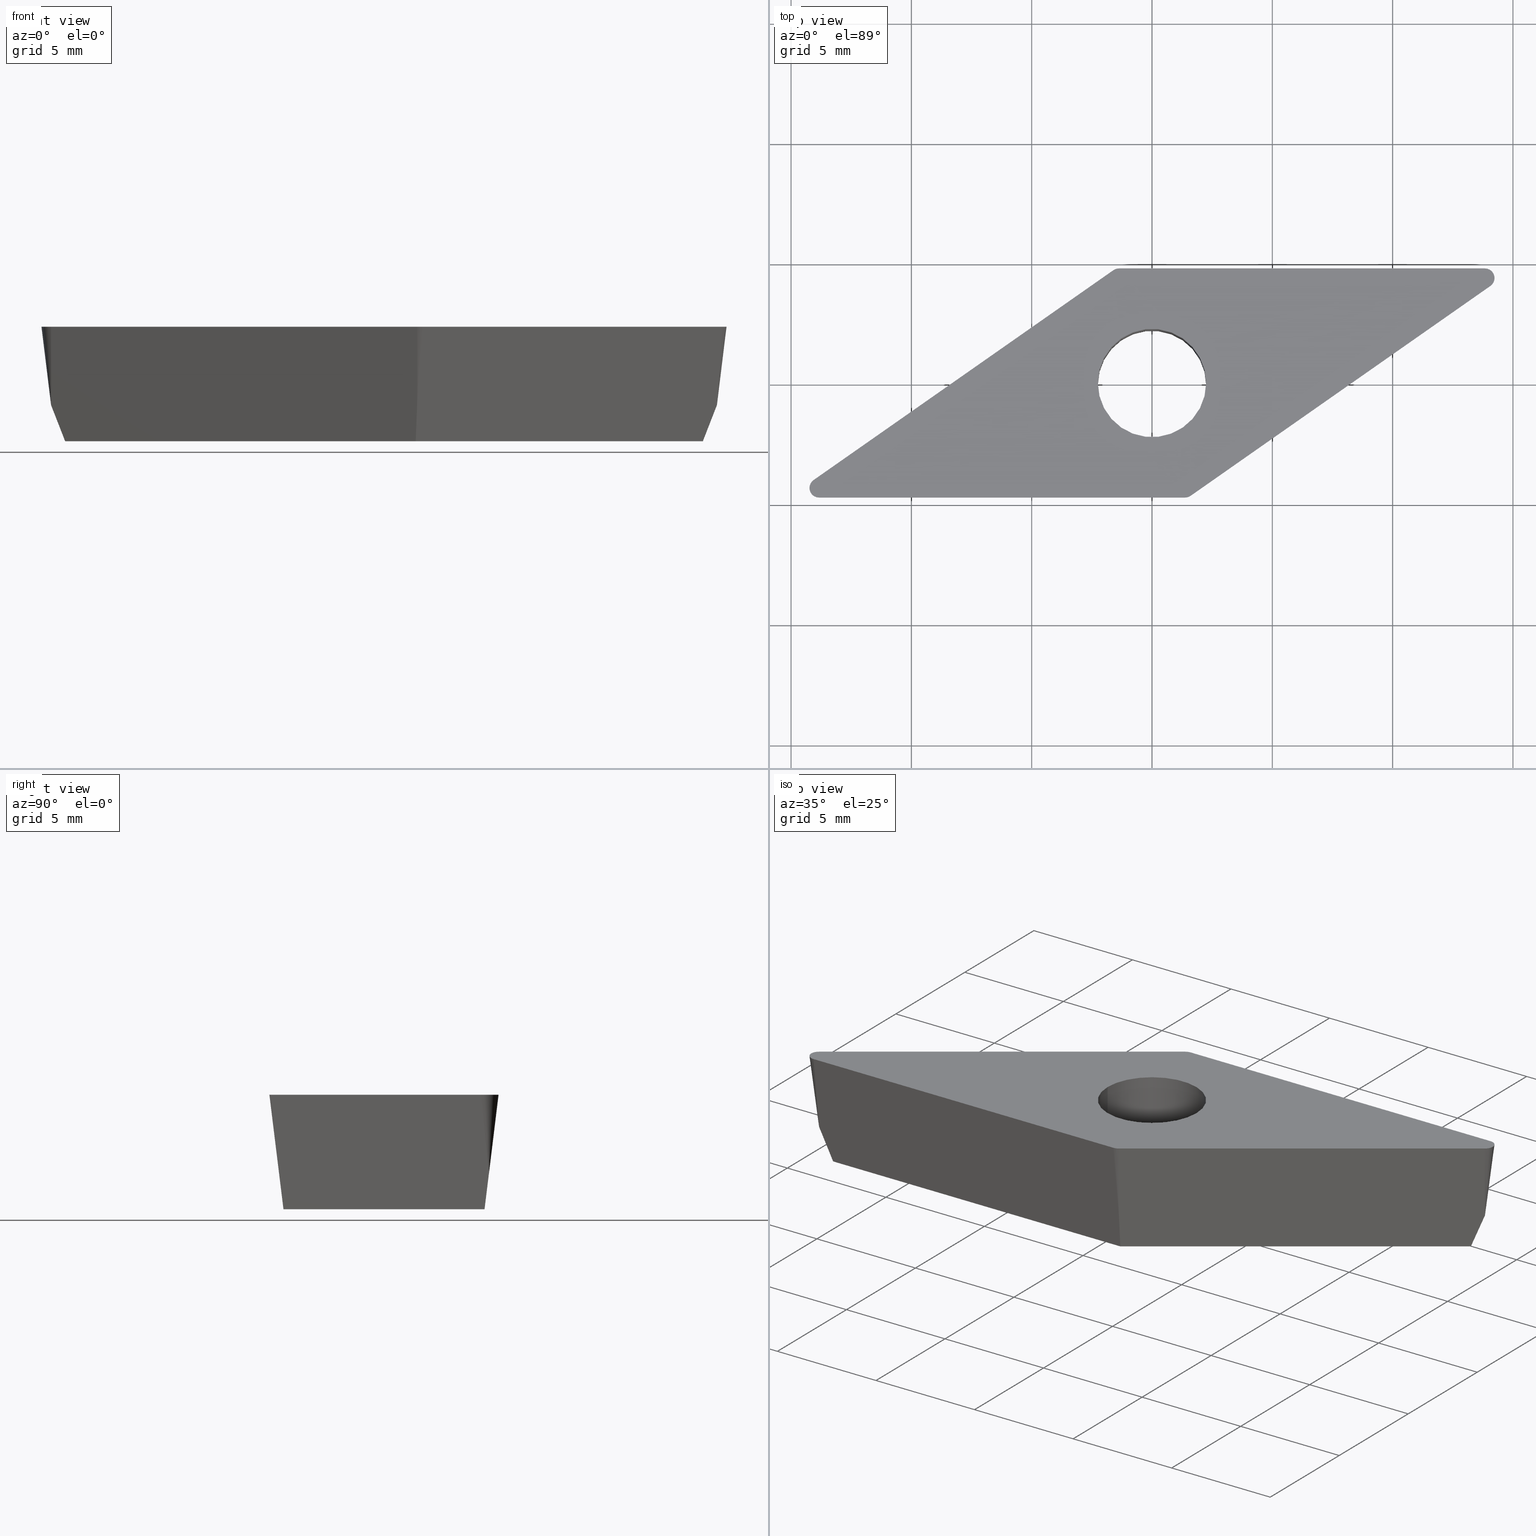
[diagram: canonical four-view strip — front | top / right | iso, engineering-drawing reading convention]
A machine part, canonical four-view strip (front | top / right | iso — engineering-drawing reading convention). The complete STEP part file that produces these views, byte-faithful:
ISO-10303-21;
HEADER;
FILE_DESCRIPTION (( 'STEP AP214' ),
    '1' );
FILE_NAME ('VC.. 160404.step',
    '2017-03-30T12:57:36',
    ( '' ),
    ( '' ),
    'SwSTEP 2.0',
    'SolidWorks 2016',
    '' );
FILE_SCHEMA (( 'AUTOMOTIVE_DESIGN' ));
ENDSEC;

DATA;
#1 = VECTOR ( 'NONE', #101, 1000.000000000000000 ) ;
#2 =( NAMED_UNIT ( * ) SI_UNIT ( $, .STERADIAN. ) SOLID_ANGLE_UNIT ( ) );
#3 = EDGE_LOOP ( 'NONE', ( #291, #242, #156 ) ) ;
#4 = SURFACE_SIDE_STYLE ('',( #329 ) ) ;
#5 = LINE ( 'NONE', #432, #124 ) ;
#6 = ORIENTED_EDGE ( 'NONE', *, *, #197, .F. ) ;
#7 = ORIENTED_EDGE ( 'NONE', *, *, #414, .F. ) ;
#8 = CARTESIAN_POINT ( 'NONE',  ( -1.604921541024973500, 4.690160817715596200, 0.0000000000000000000 ) ) ;
#9 = CARTESIAN_POINT ( 'NONE',  ( 0.0000000000000000000, 0.0000000000000000000, -4.759999999999999800 ) ) ;
#10 = LINE ( 'NONE', #37, #119 ) ;
#11 = EDGE_CURVE ( 'NONE', #434, #347, #332, .T. ) ;
#12 = ORIENTED_EDGE ( 'NONE', *, *, #296, .T. ) ;
#13 = CARTESIAN_POINT ( 'NONE',  ( 13.83608232530964200, 4.762500000000003700, 0.0000000000000000000 ) ) ;
#14 = DIRECTION ( 'NONE',  ( 1.000000000000000000, 0.0000000000000000000, 0.0000000000000000000 ) ) ;
#15 = EDGE_LOOP ( 'NONE', ( #401, #406, #408, #411, #418, #419 ) ) ;
#16 = MANIFOLD_SOLID_BREP ( 'Formschr�ge1', #94 ) ;
#17 = DIRECTION ( 'NONE',  ( 0.0000000000000000000, 0.0000000000000000000, 1.000000000000000000 ) ) ;
#18 = EDGE_CURVE ( 'NONE', #356, #384, #289, .T. ) ;
#19 = AXIS2_PLACEMENT_3D ( 'NONE', #312, #75, #346 ) ;
#20 = EDGE_LOOP ( 'NONE', ( #33, #350 ) ) ;
#21 = LINE ( 'NONE', #212, #126 ) ;
#22 = CIRCLE ( 'NONE', #303, 2.250000000000000000 ) ;
#23 = CARTESIAN_POINT ( 'NONE',  ( 5.295244242093428300, -1.392681830040321400, -4.759999999999998900 ) ) ;
#24 = FACE_OUTER_BOUND ( 'NONE', #241, .T. ) ;
#25 = AXIS2_PLACEMENT_3D ( 'NONE', #352, #85, #340 ) ;
#26 = PRODUCT_DEFINITION ( 'UNKNOWN', '', #413, #365 ) ;
#27 = FACE_OUTER_BOUND ( 'NONE', #454, .T. ) ;
#28 = CARTESIAN_POINT ( 'NONE',  ( -13.83608232530964500, -4.362500000000001600, 0.0000000000000000000 ) ) ;
#29 = B_SPLINE_CURVE_WITH_KNOTS ( 'NONE', 3,
 ( #283, #23, #405, #441 ),
 .UNSPECIFIED., .F., .F.,
 ( 4, 4 ),
 ( 0.0000000000000000000, 0.01456840004335603300 ),
 .UNSPECIFIED. ) ;
#30 = CARTESIAN_POINT ( 'NONE',  ( 13.83608232530964300, 4.362500000000005200, -3.257738571189814800 ) ) ;
#31 = DIRECTION ( 'NONE',  ( 6.365331826332493700E-018, -0.1218693434051477400, 0.9925461516413219800 ) ) ;
#32 = ORIENTED_EDGE ( 'NONE', *, *, #363, .F. ) ;
#33 = ORIENTED_EDGE ( 'NONE', *, *, #368, .F. ) ;
#34 = ADVANCED_FACE ( 'NONE', ( #293, #285 ), #402, .T. ) ;
#35 = CARTESIAN_POINT ( 'NONE',  ( -14.06551289985006100, -4.034839182284403400, 0.0000000000000000000 ) ) ;
#36 = CARTESIAN_POINT ( 'NONE',  ( -1.375490966484558700, 4.762499999999999300, 0.0000000000000000000 ) ) ;
#37 = CARTESIAN_POINT ( 'NONE',  ( -2.250000000000000000, 2.755455298081544300E-016, -4.759999999999999800 ) ) ;
#38 = ADVANCED_FACE ( 'NONE', ( #295 ), #336, .T. ) ;
#39 = CARTESIAN_POINT ( 'NONE',  ( 1.202646339029181300, -4.115652289823526800, -5.711999999999998900 ) ) ;
#40 = CARTESIAN_POINT ( 'NONE',  ( 8.765557894711575300, 4.762500000000003700, 0.0000000000000000000 ) ) ;
#41 = EDGE_CURVE ( 'NONE', #280, #268, #226, .T. ) ;
#42 = VERTEX_POINT ( 'NONE', #13 ) ;
#43 = ORIENTED_EDGE ( 'NONE', *, *, #298, .F. ) ;
#44 = CARTESIAN_POINT ( 'NONE',  ( -1.375490966484558500, 4.061154588122606800, -5.711999999999998900 ) ) ;
#45 = UNCERTAINTY_MEASURE_WITH_UNIT (LENGTH_MEASURE( 1.000000000000000100E-005 ), #142, 'distance_accuracy_value', 'NONE');
#46 = EDGE_LOOP ( 'NONE', ( #370, #372, #373, #381, #391, #396 ) ) ;
#47 = EDGE_LOOP ( 'NONE', ( #353, #362, #366, #367 ) ) ;
#48 = ORIENTED_EDGE ( 'NONE', *, *, #398, .F. ) ;
#49 = CARTESIAN_POINT ( 'NONE',  ( 3.538800664874899700, 4.178045490102172200, -4.759999999999998900 ) ) ;
#50 = DIRECTION ( 'NONE',  ( 0.0000000000000000000, 0.0000000000000000000, 1.000000000000000000 ) ) ;
#51 = VERTEX_POINT ( 'NONE', #331 ) ;
#52 = ORIENTED_EDGE ( 'NONE', *, *, #397, .T. ) ;
#53 = AXIS2_PLACEMENT_3D ( 'NONE', #328, #379, #472 ) ;
#54 = CARTESIAN_POINT ( 'NONE',  ( 3.695033464113509400, 4.061154588122606800, -5.711999999999998900 ) ) ;
#55 = CARTESIAN_POINT ( 'NONE',  ( 0.0000000000000000000, 0.0000000000000000000, -4.759999999999999800 ) ) ;
#56 = CARTESIAN_POINT ( 'NONE',  ( 13.25106736044576300, 4.178045490102176600, -4.760000000000000700 ) ) ;
#57 = PRESENTATION_STYLE_ASSIGNMENT (( #144 ) ) ;
#58 = VERTEX_POINT ( 'NONE', #394 ) ;
#59 = ORIENTED_EDGE ( 'NONE', *, *, #410, .F. ) ;
#60 = DIRECTION ( 'NONE',  ( -1.000000000000000000, 0.0000000000000000000, -0.0000000000000000000 ) ) ;
#61 = FILL_AREA_STYLE_COLOUR ( '', #333 ) ;
#62 = SURFACE_STYLE_FILL_AREA ( #146 ) ;
#63 = COLOUR_RGB ( '',0.7960784313725489700, 0.8235294117647058400, 0.9372549019607843100 ) ;
#64 = CARTESIAN_POINT ( 'NONE',  ( -1.317332682910531600, 4.178045490102173100, -4.760000000000000700 ) ) ;
#65 = CARTESIAN_POINT ( 'NONE',  ( 5.356176791975568300, -1.207318956496878500, -5.711999999999998900 ) ) ;
#66 = EDGE_CURVE ( 'NONE', #280, #141, #337, .T. ) ;
#67 = EDGE_LOOP ( 'NONE', ( #466, #469, #471, #476 ) ) ;
#68 = DIRECTION ( 'NONE',  ( -0.0000000000000000000, -0.0000000000000000000, 1.000000000000000000 ) ) ;
#69 = DIRECTION ( 'NONE',  ( -0.0000000000000000000, -0.0000000000000000000, 1.000000000000000000 ) ) ;
#70 = CARTESIAN_POINT ( 'NONE',  ( -13.83608232530964500, -4.362500000000001600, 0.0000000000000000000 ) ) ;
#71 = DIRECTION ( 'NONE',  ( 1.000000000000000000, 0.0000000000000000000, 0.0000000000000000000 ) ) ;
#72 = CARTESIAN_POINT ( 'NONE',  ( 9.911982446906366200, 1.126505848953926600, 0.0000000000000000000 ) ) ;
#73 = PRODUCT_DEFINITION_SHAPE ( 'NONE', 'NONE',  #26 ) ;
#74 = CARTESIAN_POINT ( 'NONE',  ( 14.06551289985006300, 4.034839182284407900, 0.0000000000000000000 ) ) ;
#75 = DIRECTION ( 'NONE',  ( -0.0000000000000000000, -0.0000000000000000000, 1.000000000000000000 ) ) ;
#76 = DIRECTION ( 'NONE',  ( -1.000000000000000000, 0.0000000000000000000, 0.0000000000000000000 ) ) ;
#77 = DIRECTION ( 'NONE',  ( -6.365331826332493700E-018, 0.1218693434051477400, -0.9925461516413219800 ) ) ;
#78 = CARTESIAN_POINT ( 'NONE',  ( 0.0000000000000000000, 0.0000000000000000000, -4.759999999999999800 ) ) ;
#79 = CONICAL_SURFACE ( 'NONE', #435, 0.3999999999999993000, 0.1221730476396033400 ) ;
#80 = CIRCLE ( 'NONE', #90, 0.3999999999999993000 ) ;
#81 = FACE_OUTER_BOUND ( 'NONE', #15, .T. ) ;
#82 = ADVANCED_FACE ( 'NONE', ( #269, #284 ), #343, .F. ) ;
#83 = CONICAL_SURFACE ( 'NONE', #19, 0.3999999999999999700, 0.1221730476396033400 ) ;
#84 = CARTESIAN_POINT ( 'NONE',  ( 1.375490966484557400, -4.362500000000007800, -3.257738571189773100 ) ) ;
#85 = DIRECTION ( 'NONE',  ( -0.0000000000000000000, -0.0000000000000000000, 1.000000000000000000 ) ) ;
#86 = FACE_OUTER_BOUND ( 'NONE', #3, .T. ) ;
#87 =( NAMED_UNIT ( * ) PLANE_ANGLE_UNIT ( ) SI_UNIT ( $, .RADIAN. ) );
#88 = APPLICATION_CONTEXT ( 'automotive_design' ) ;
#89 = PRODUCT_CONTEXT ( 'NONE', #99, 'mechanical' ) ;
#90 = AXIS2_PLACEMENT_3D ( 'NONE', #176, #175, #174 ) ;
#91 = CARTESIAN_POINT ( 'NONE',  ( -13.83608232530964500, -4.762500000000002000, 0.0000000000000000000 ) ) ;
#92 = ADVANCED_BREP_SHAPE_REPRESENTATION ( 'VC.. 160404', ( #16, #255 ), #281 ) ;
#93 = VECTOR ( 'NONE', #152, 1000.000000000000000 ) ;
#94 = CLOSED_SHELL ( 'NONE', ( #443, #110, #317, #459, #38, #415, #34, #82, #440, #436, #100, #186, #227 ) ) ;
#95 = CARTESIAN_POINT ( 'NONE',  ( -8.765557894711571800, -4.762500000000002000, 0.0000000000000000000 ) ) ;
#96 = APPLICATION_PROTOCOL_DEFINITION ( 'draft international standard', 'automotive_design', 1998, #99 ) ;
#97 = CYLINDRICAL_SURFACE ( 'NONE', #389, 2.250000000000000000 ) ;
#98 = AXIS2_PLACEMENT_3D ( 'NONE', #173, #104, #103 ) ;
#99 = APPLICATION_CONTEXT ( 'automotive_design' ) ;
#100 = ADVANCED_FACE ( 'NONE', ( #248 ), #240, .T. ) ;
#101 = DIRECTION ( 'NONE',  ( 0.06990138369076599700, -0.09982952178648427100, 0.9925461516413219800 ) ) ;
#102 = APPLICATION_CONTEXT ( 'automotive_design' ) ;
#103 = DIRECTION ( 'NONE',  ( 1.000000000000000000, 0.0000000000000000000, 0.0000000000000000000 ) ) ;
#104 = DIRECTION ( 'NONE',  ( 0.0000000000000000000, 0.0000000000000000000, 1.000000000000000000 ) ) ;
#105 = ORIENTED_EDGE ( 'NONE', *, *, #407, .F. ) ;
#106 = DIRECTION ( 'NONE',  ( 1.000000000000000000, 0.0000000000000000000, 0.0000000000000000000 ) ) ;
#107 = LINE ( 'NONE', #385, #93 ) ;
#108 = EDGE_CURVE ( 'NONE', #384, #42, #245, .T. ) ;
#109 = PRODUCT_CONTEXT ( 'NONE', #102, 'mechanical' ) ;
#110 = ADVANCED_FACE ( 'NONE', ( #271 ), #234, .F. ) ;
#111 = DIRECTION ( 'NONE',  ( -1.000000000000000000, 0.0000000000000000000, 0.0000000000000000000 ) ) ;
#112 = APPLICATION_PROTOCOL_DEFINITION ( 'draft international standard', 'automotive_design', 1998, #102 ) ;
#113 = APPLICATION_PROTOCOL_DEFINITION ( 'draft international standard', 'automotive_design', 1998, #88 ) ;
#114 = CARTESIAN_POINT ( 'NONE',  ( -1.356104871959882500, 4.301015163367398300, -3.758492380793154300 ) ) ;
#115 = ORIENTED_EDGE ( 'NONE', *, *, #368, .T. ) ;
#116 = DIRECTION ( 'NONE',  ( 0.0000000000000000000, 0.0000000000000000000, 1.000000000000000000 ) ) ;
#117 = DIRECTION ( 'NONE',  ( -0.06990138369076598400, 0.09982952178648429900, 0.9925461516413219800 ) ) ;
#118 = DIRECTION ( 'NONE',  ( 0.0000000000000000000, 0.0000000000000000000, 1.000000000000000000 ) ) ;
#119 = VECTOR ( 'NONE', #17, 1000.000000000000000 ) ;
#120 = FACE_OUTER_BOUND ( 'NONE', #251, .T. ) ;
#121 = DIRECTION ( 'NONE',  ( -1.000000000000000000, 0.0000000000000000000, 0.0000000000000000000 ) ) ;
#122 = EDGE_CURVE ( 'NONE', #356, #369, #276, .T. ) ;
#123 = APPLICATION_PROTOCOL_DEFINITION ( 'draft international standard', 'automotive_design', 1998, #128 ) ;
#124 = VECTOR ( 'NONE', #31, 1000.000000000000000 ) ;
#125 = CARTESIAN_POINT ( 'NONE',  ( 1.604921541024970200, -4.690160817715599800, 0.0000000000000000000 ) ) ;
#126 = VECTOR ( 'NONE', #364, 1000.000000000000000 ) ;
#127 = DIRECTION ( 'NONE',  ( -1.000000000000000000, 0.0000000000000000000, -0.0000000000000000000 ) ) ;
#128 = APPLICATION_CONTEXT ( 'automotive_design' ) ;
#129 = CARTESIAN_POINT ( 'NONE',  ( 15.10472024625493900, 4.762500000000003700, 0.0000000000000000000 ) ) ;
#130 = EDGE_CURVE ( 'NONE', #51, #404, #29, .T. ) ;
#131 = PRODUCT ( 'VC.. 160404', 'VC.. 160404', '', ( #89 ) ) ;
#132 = VECTOR ( 'NONE', #182, 1000.000000000000000 ) ;
#133 = LINE ( 'NONE', #74, #1 ) ;
#134 = VECTOR ( 'NONE', #322, 1000.000000000000000 ) ;
#135 = CARTESIAN_POINT ( 'NONE',  ( 13.83608232530964200, 4.362500000000003400, 0.0000000000000000000 ) ) ;
#136 = DIRECTION ( 'NONE',  ( 0.0000000000000000000, 0.0000000000000000000, 1.000000000000000000 ) ) ;
#137 = ORIENTED_EDGE ( 'NONE', *, *, #383, .F. ) ;
#138 = CARTESIAN_POINT ( 'NONE',  ( -5.356176791971639000, 1.207318956491275200, -5.711999999999998900 ) ) ;
#139 =( NAMED_UNIT ( * ) SI_UNIT ( $, .STERADIAN. ) SOLID_ANGLE_UNIT ( ) );
#140 =( NAMED_UNIT ( * ) PLANE_ANGLE_UNIT ( ) SI_UNIT ( $, .RADIAN. ) );
#141 = VERTEX_POINT ( 'NONE', #159 ) ;
#142 =( LENGTH_UNIT ( ) NAMED_UNIT ( * ) SI_UNIT ( .MILLI., .METRE. ) );
#143 = CARTESIAN_POINT ( 'NONE',  ( -13.25106736044506700, -4.178045490102174000, -4.760000000000000700 ) ) ;
#144 = SURFACE_STYLE_USAGE ( .BOTH. , #145 ) ;
#145 = SURFACE_SIDE_STYLE ('',( #62 ) ) ;
#146 = FILL_AREA_STYLE ('',( #167 ) ) ;
#147 = CIRCLE ( 'NONE', #309, 2.250000000000000000 ) ;
#148 = VECTOR ( 'NONE', #117, 1000.000000000000000 ) ;
#149 = CARTESIAN_POINT ( 'NONE',  ( -5.758451993967421200, 1.781827484383353500, 0.0000000000000000000 ) ) ;
#150 = ORIENTED_EDGE ( 'NONE', *, *, #108, .F. ) ;
#151 = CARTESIAN_POINT ( 'NONE',  ( 5.758451993971353200, -1.781827484388953700, 0.0000000000000000000 ) ) ;
#152 = DIRECTION ( 'NONE',  ( 1.000000000000000000, 5.223078789528969500E-017, -0.0000000000000000000 ) ) ;
#153 = DIRECTION ( 'NONE',  ( 1.000000000000000000, 0.0000000000000000000, 0.0000000000000000000 ) ) ;
#154 = CARTESIAN_POINT ( 'NONE',  ( -13.83608232530964500, -4.362500000000001600, 0.0000000000000000000 ) ) ;
#155 = CARTESIAN_POINT ( 'NONE',  ( 1.604921541024971800, -4.690160817715598000, 0.0000000000000000000 ) ) ;
#156 = ORIENTED_EDGE ( 'NONE', *, *, #450, .F. ) ;
#157 = CARTESIAN_POINT ( 'NONE',  ( -15.10472024625494200, -4.762500000000002000, 0.0000000000000000000 ) ) ;
#158 = STYLED_ITEM ( 'NONE', ( #326 ), #16 ) ;
#159 = CARTESIAN_POINT ( 'NONE',  ( -1.375490966484563800, 4.362500000000008700, -3.257738571189731800 ) ) ;
#160 = PRESENTATION_LAYER_ASSIGNMENT (  '', '', ( #468 ) ) ;
#161 =( NAMED_UNIT ( * ) SI_UNIT ( $, .STERADIAN. ) SOLID_ANGLE_UNIT ( ) );
#162 = CIRCLE ( 'NONE', #313, 2.250000000000000000 ) ;
#163 = CARTESIAN_POINT ( 'NONE',  ( -2.250000000000000000, 2.755455298081544300E-016, 0.0000000000000000000 ) ) ;
#164 =( NAMED_UNIT ( * ) PLANE_ANGLE_UNIT ( ) SI_UNIT ( $, .RADIAN. ) );
#165 = CARTESIAN_POINT ( 'NONE',  ( 0.0000000000000000000, 0.0000000000000000000, 0.0000000000000000000 ) ) ;
#166 = LINE ( 'NONE', #36, #132 ) ;
#167 = FILL_AREA_STYLE_COLOUR ( '', #63 ) ;
#168 = CARTESIAN_POINT ( 'NONE',  ( -1.375490966484558700, 4.762499999999999300, 0.0000000000000000000 ) ) ;
#169 = VECTOR ( 'NONE', #77, 1000.000000000000000 ) ;
#170 = CARTESIAN_POINT ( 'NONE',  ( 3.695033464113509900, 4.762499999999999300, 0.0000000000000000000 ) ) ;
#171 = LINE ( 'NONE', #345, #148 ) ;
#172 = EDGE_CURVE ( 'NONE', #404, #421, #376, .T. ) ;
#173 = CARTESIAN_POINT ( 'NONE',  ( 0.0000000000000000000, 0.0000000000000000000, 0.0000000000000000000 ) ) ;
#174 = DIRECTION ( 'NONE',  ( -1.000000000000000000, 2.168404344971012800E-015, 0.0000000000000000000 ) ) ;
#175 = DIRECTION ( 'NONE',  ( -0.0000000000000000000, -0.0000000000000000000, 1.000000000000000000 ) ) ;
#176 = CARTESIAN_POINT ( 'NONE',  ( -13.83608232530964500, -4.362500000000001600, 0.0000000000000000000 ) ) ;
#177 = CIRCLE ( 'NONE', #279, 2.250000000000000000 ) ;
#178 = CARTESIAN_POINT ( 'NONE',  ( -13.25106736044506700, -4.178045490102174000, -4.760000000000000700 ) ) ;
#179 = CARTESIAN_POINT ( 'NONE',  ( 1.356104871959926900, -4.301015163367396500, -3.758492380793182700 ) ) ;
#180 = LINE ( 'NONE', #442, #134 ) ;
#181 = B_SPLINE_SURFACE_WITH_KNOTS ( 'NONE', 1, 3, ( 
 ( #184, #40, #170, #168 ),
 ( #310, #308, #54, #44 ) ),
 .UNSPECIFIED., .F., .F., .F.,
 ( 2, 2 ),
 ( 4, 4 ),
 ( 0.0000000000000000000, 1.000000000000000000 ),
 ( -0.01533769280734578900, -0.0001261195155515895400 ),
 .UNSPECIFIED. ) ;
#182 = DIRECTION ( 'NONE',  ( -3.182665913166247500E-017, 0.1218693434051477400, 0.9925461516413219800 ) ) ;
#183 = LINE ( 'NONE', #431, #191 ) ;
#184 = CARTESIAN_POINT ( 'NONE',  ( 13.83608232530964200, 4.762500000000003700, 0.0000000000000000000 ) ) ;
#185 = ORIENTED_EDGE ( 'NONE', *, *, #427, .F. ) ;
#186 = ADVANCED_FACE ( 'NONE', ( #228 ), #209, .T. ) ;
#187 = B_SPLINE_SURFACE_WITH_KNOTS ( 'NONE', 1, 3, ( 
 ( #8, #149, #351, #290 ),
 ( #292, #138, #204, #205 ) ),
 .UNSPECIFIED., .F., .F., .F.,
 ( 2, 2 ),
 ( 4, 4 ),
 ( 0.0000000000000000000, 1.000000000000000000 ),
 ( -0.01648021121273949100, -0.001268637920945297400 ),
 .UNSPECIFIED. ) ;
#188 = CARTESIAN_POINT ( 'NONE',  ( 1.375490966484556300, -4.762500000000001100, 0.0000000000000000000 ) ) ;
#189 = DIRECTION ( 'NONE',  ( 0.0000000000000000000, 0.0000000000000000000, -1.000000000000000000 ) ) ;
#190 = ORIENTED_EDGE ( 'NONE', *, *, #383, .T. ) ;
#191 = VECTOR ( 'NONE', #118, 1000.000000000000000 ) ;
#192 = VECTOR ( 'NONE', #302, 1000.000000000000000 ) ;
#193 = ORIENTED_EDGE ( 'NONE', *, *, #122, .F. ) ;
#194 = EDGE_LOOP ( 'NONE', ( #429, #433, #438, #445, #449, #451 ) ) ;
#195 = ORIENTED_EDGE ( 'NONE', *, *, #229, .F. ) ;
#196 = CONICAL_SURFACE ( 'NONE', #461, 0.3999999999999993000, 0.1221730476396033400 ) ;
#197 = EDGE_CURVE ( 'NONE', #349, #141, #217, .T. ) ;
#198 = CIRCLE ( 'NONE', #323, 0.3999999999999999700 ) ;
#199 = FACE_OUTER_BOUND ( 'NONE', #46, .T. ) ;
#200 = CARTESIAN_POINT ( 'NONE',  ( 1.375490966484557400, -4.362500000000007800, -3.257738571189773100 ) ) ;
#201 = UNCERTAINTY_MEASURE_WITH_UNIT (LENGTH_MEASURE( 1.000000000000000100E-005 ), #467, 'distance_accuracy_value', 'NONE');
#202 = AXIS2_PLACEMENT_3D ( 'NONE', #70, #214, #334 ) ;
#203 = VECTOR ( 'NONE', #207, 1000.000000000000100 ) ;
#204 = CARTESIAN_POINT ( 'NONE',  ( -9.509707244912023700, -1.701014376843929600, -5.711999999999998900 ) ) ;
#205 = CARTESIAN_POINT ( 'NONE',  ( -13.66323769785427300, -4.609347710176476400, -5.711999999999998900 ) ) ;
#206 = CARTESIAN_POINT ( 'NONE',  ( 2.250000000000000000, 0.0000000000000000000, 0.0000000000000000000 ) ) ;
#207 = DIRECTION ( 'NONE',  ( -0.8191520442889946900, -0.5735764363510417200, -0.0000000000000000000 ) ) ;
#208 = CARTESIAN_POINT ( 'NONE',  ( -8.394934012659817300, -4.178045490102174900, -4.760000000000000700 ) ) ;
#209 = CONICAL_SURFACE ( 'NONE', #246, 0.3999999999999993000, 0.1221730476396033400 ) ;
#210 = CARTESIAN_POINT ( 'NONE',  ( -13.25106736044506700, -4.178045490102174000, -4.760000000000000700 ) ) ;
#211 = LINE ( 'NONE', #306, #169 ) ;
#212 = CARTESIAN_POINT ( 'NONE',  ( -14.23608232530964400, -4.362500000000001600, 0.0000000000000000000 ) ) ;
#213 = PRODUCT_RELATED_PRODUCT_CATEGORY ( 'part', '', ( #131 ) ) ;
#214 = DIRECTION ( 'NONE',  ( -0.0000000000000000000, -0.0000000000000000000, 1.000000000000000000 ) ) ;
#215 = CARTESIAN_POINT ( 'NONE',  ( -14.23608232530964400, -4.362500000000001600, 0.0000000000000000000 ) ) ;
#216 = SURFACE_STYLE_USAGE ( .BOTH. , #4 ) ;
#217 = LINE ( 'NONE', #286, #223 ) ;
#218 = CARTESIAN_POINT ( 'NONE',  ( 1.336718777435298700, -4.239530326734785200, -4.259246190396591900 ) ) ;
#219 = DIRECTION ( 'NONE',  ( -1.000000000000000000, 1.084202172485504600E-014, 0.0000000000000000000 ) ) ;
#220 = PRODUCT_RELATED_PRODUCT_CATEGORY ( 'part', '', ( #378 ) ) ;
#221 = UNCERTAINTY_MEASURE_WITH_UNIT (LENGTH_MEASURE( 1.000000000000000100E-005 ), #457, 'distance_accuracy_value', 'NONE');
#222 = CARTESIAN_POINT ( 'NONE',  ( -1.317332682910531600, 4.178045490102173100, -4.760000000000000700 ) ) ;
#223 = VECTOR ( 'NONE', #448, 1000.000000000000000 ) ;
#224 = MECHANICAL_DESIGN_GEOMETRIC_PRESENTATION_REPRESENTATION (  '', ( #158 ), #392 ) ;
#225 = CARTESIAN_POINT ( 'NONE',  ( -5.295244242089439400, 1.392681830035107600, -4.759999999999998900 ) ) ;
#226 = B_SPLINE_CURVE_WITH_KNOTS ( 'NONE', 3,
 ( #355, #225, #243, #288 ),
 .UNSPECIFIED., .F., .F.,
 ( 4, 4 ),
 ( 1.226634733346699300E-018, 0.01456840004335557700 ),
 .UNSPECIFIED. ) ;
#227 = ADVANCED_FACE ( 'NONE', ( #232 ), #196, .T. ) ;
#228 = FACE_OUTER_BOUND ( 'NONE', #354, .T. ) ;
#229 = EDGE_CURVE ( 'NONE', #456, #356, #198, .T. ) ;
#230 = DIRECTION ( 'NONE',  ( 1.000000000000000000, 0.0000000000000000000, 0.0000000000000000000 ) ) ;
#231 = ORIENTED_EDGE ( 'NONE', *, *, #387, .F. ) ;
#232 = FACE_OUTER_BOUND ( 'NONE', #264, .T. ) ;
#233 = CARTESIAN_POINT ( 'NONE',  ( 1.375490966484556700, -4.061154588122608500, -5.711999999999998900 ) ) ;
#234 = CYLINDRICAL_SURFACE ( 'NONE', #339, 2.250000000000000000 ) ;
#235 = DIRECTION ( 'NONE',  ( 0.0000000000000000000, 0.0000000000000000000, 1.000000000000000000 ) ) ;
#236 = ORIENTED_EDGE ( 'NONE', *, *, #11, .F. ) ;
#237 = CARTESIAN_POINT ( 'NONE',  ( 1.604921541024970200, -4.690160817715599800, 0.0000000000000000000 ) ) ;
#238 = CARTESIAN_POINT ( 'NONE',  ( 1.317332682910668200, -4.178045490102174000, -4.760000000000001600 ) ) ;
#239 = CARTESIAN_POINT ( 'NONE',  ( 0.0000000000000000000, 0.0000000000000000000, 0.0000000000000000000 ) ) ;
#240 = CONICAL_SURFACE ( 'NONE', #25, 0.3999999999999999700, 0.1221730476396033400 ) ;
#241 = EDGE_LOOP ( 'NONE', ( #48, #6, #43 ) ) ;
#242 = ORIENTED_EDGE ( 'NONE', *, *, #424, .T. ) ;
#243 = CARTESIAN_POINT ( 'NONE',  ( -9.273155801266469200, -1.392681830034654200, -4.759999999999998900 ) ) ;
#244 = DIRECTION ( 'NONE',  ( -0.0000000000000000000, -0.0000000000000000000, 1.000000000000000000 ) ) ;
#245 = CIRCLE ( 'NONE', #53, 0.3999999999999993000 ) ;
#246 = AXIS2_PLACEMENT_3D ( 'NONE', #135, #416, #426 ) ;
#247 = CARTESIAN_POINT ( 'NONE',  ( -3.538800664874575100, -4.178045490102174000, -4.760000000000000700 ) ) ;
#248 = FACE_OUTER_BOUND ( 'NONE', #358, .T. ) ;
#249 = CARTESIAN_POINT ( 'NONE',  ( -2.250000000000000000, 2.755455298081544300E-016, -4.759999999999999800 ) ) ;
#250 = ORIENTED_EDGE ( 'NONE', *, *, #427, .T. ) ;
#251 = EDGE_LOOP ( 'NONE', ( #452, #458, #260, #185, #190, #266 ) ) ;
#252 = CARTESIAN_POINT ( 'NONE',  ( 1.317332682910668200, -4.178045490102174000, -4.760000000000001600 ) ) ;
#253 = CARTESIAN_POINT ( 'NONE',  ( 2.250000000000000000, 0.0000000000000000000, -4.759999999999999800 ) ) ;
#254 = LINE ( 'NONE', #324, #192 ) ;
#255 = AXIS2_PLACEMENT_3D ( 'NONE', #165, #136, #106 ) ;
#256 = CARTESIAN_POINT ( 'NONE',  ( 0.0000000000000000000, 0.0000000000000000000, 0.0000000000000000000 ) ) ;
#257 = ORIENTED_EDGE ( 'NONE', *, *, #450, .T. ) ;
#258 = CARTESIAN_POINT ( 'NONE',  ( -1.604921541024973500, 4.690160817715596200, 0.0000000000000000000 ) ) ;
#259 = CARTESIAN_POINT ( 'NONE',  ( -1.375490966484558500, 4.362499999999998900, 0.0000000000000000000 ) ) ;
#260 = ORIENTED_EDGE ( 'NONE', *, *, #410, .T. ) ;
#261 = ORIENTED_EDGE ( 'NONE', *, *, #387, .T. ) ;
#262 = VERTEX_POINT ( 'NONE', #249 ) ;
#263 = CARTESIAN_POINT ( 'NONE',  ( -8.765557894711571800, -4.061154588122609400, -5.711999999999998900 ) ) ;
#264 = EDGE_LOOP ( 'NONE', ( #299, #137, #236 ) ) ;
#265 = ORIENTED_EDGE ( 'NONE', *, *, #229, .T. ) ;
#266 = ORIENTED_EDGE ( 'NONE', *, *, #375, .F. ) ;
#267 = CARTESIAN_POINT ( 'NONE',  ( -13.83608232530964500, -4.061154588122609400, -5.711999999999998900 ) ) ;
#268 = VERTEX_POINT ( 'NONE', #143 ) ;
#269 = FACE_BOUND ( 'NONE', #20, .T. ) ;
#270 = CARTESIAN_POINT ( 'NONE',  ( 1.375490966484556700, -4.762500000000001100, 0.0000000000000000000 ) ) ;
#271 = FACE_OUTER_BOUND ( 'NONE', #47, .T. ) ;
#272 = VECTOR ( 'NONE', #320, 1000.000000000000000 ) ;
#273 = CARTESIAN_POINT ( 'NONE',  ( 1.375490966484556300, -4.362500000000000700, 0.0000000000000000000 ) ) ;
#274 = PRESENTATION_LAYER_ASSIGNMENT (  '', '', ( #158 ) ) ;
#275 = LINE ( 'NONE', #157, #203 ) ;
#276 = LINE ( 'NONE', #125, #272 ) ;
#277 = DIRECTION ( 'NONE',  ( 0.0000000000000000000, 0.0000000000000000000, 1.000000000000000000 ) ) ;
#278 = CARTESIAN_POINT ( 'NONE',  ( -3.695033464113510300, -4.762500000000001100, 0.0000000000000000000 ) ) ;
#279 = AXIS2_PLACEMENT_3D ( 'NONE', #239, #235, #230 ) ;
#280 = VERTEX_POINT ( 'NONE', #222 ) ;
#281 =( GEOMETRIC_REPRESENTATION_CONTEXT ( 3 ) GLOBAL_UNCERTAINTY_ASSIGNED_CONTEXT ( ( #221 ) ) GLOBAL_UNIT_ASSIGNED_CONTEXT ( ( #457, #164, #161 ) ) REPRESENTATION_CONTEXT ( 'NONE', 'WORKASPACE' ) );
#282 = CIRCLE ( 'NONE', #301, 0.3999999999999999700 ) ;
#283 = CARTESIAN_POINT ( 'NONE',  ( 1.317332682910668200, -4.178045490102174000, -4.760000000000001600 ) ) ;
#284 = FACE_OUTER_BOUND ( 'NONE', #357, .T. ) ;
#285 = FACE_OUTER_BOUND ( 'NONE', #67, .T. ) ;
#286 = CARTESIAN_POINT ( 'NONE',  ( -1.604921541024973500, 4.690160817715596200, 0.0000000000000000000 ) ) ;
#287 = VECTOR ( 'NONE', #371, 1000.000000000000100 ) ;
#288 = CARTESIAN_POINT ( 'NONE',  ( -13.25106736044506700, -4.178045490102174000, -4.760000000000000700 ) ) ;
#289 = LINE ( 'NONE', #129, #287 ) ;
#290 = CARTESIAN_POINT ( 'NONE',  ( -14.06551289985006100, -4.034839182284403400, 0.0000000000000000000 ) ) ;
#291 = ORIENTED_EDGE ( 'NONE', *, *, #393, .F. ) ;
#292 = CARTESIAN_POINT ( 'NONE',  ( -1.202646339029185100, 4.115652289823523300, -5.711999999999998900 ) ) ;
#293 = FACE_BOUND ( 'NONE', #388, .T. ) ;
#294 = ORIENTED_EDGE ( 'NONE', *, *, #11, .T. ) ;
#295 = FACE_OUTER_BOUND ( 'NONE', #194, .T. ) ;
#296 = EDGE_CURVE ( 'NONE', #349, #417, #275, .T. ) ;
#297 = CARTESIAN_POINT ( 'NONE',  ( -1.375490966484563800, 4.362500000000008700, -3.257738571189731800 ) ) ;
#298 = EDGE_CURVE ( 'NONE', #344, #349, #282, .T. ) ;
#299 = ORIENTED_EDGE ( 'NONE', *, *, #424, .F. ) ;
#300 = CARTESIAN_POINT ( 'NONE',  ( 0.0000000000000000000, 0.0000000000000000000, -4.759999999999999800 ) ) ;
#301 = AXIS2_PLACEMENT_3D ( 'NONE', #259, #244, #219 ) ;
#302 = DIRECTION ( 'NONE',  ( 3.182665913166247500E-017, -0.1218693434051477400, -0.9925461516413219800 ) ) ;
#303 = AXIS2_PLACEMENT_3D ( 'NONE', #422, #390, #386 ) ;
#304 = PRODUCT_DEFINITION ( 'UNKNOWN', '', #335, #425 ) ;
#305 = B_SPLINE_CURVE_WITH_KNOTS ( 'NONE', 3,
 ( #178, #460, #455, #447 ),
 .UNSPECIFIED., .F., .F.,
 ( 4, 4 ),
 ( 0.0000000000000000000, 0.001622669213311180100 ),
 .UNSPECIFIED. ) ;
#306 = CARTESIAN_POINT ( 'NONE',  ( -13.83608232530964500, -4.762500000000002000, 0.0000000000000000000 ) ) ;
#307 = MECHANICAL_DESIGN_GEOMETRIC_PRESENTATION_REPRESENTATION (  '', ( #468 ), #327 ) ;
#308 = CARTESIAN_POINT ( 'NONE',  ( 8.765557894711575300, 4.061154588122611200, -5.711999999999998900 ) ) ;
#309 = AXIS2_PLACEMENT_3D ( 'NONE', #55, #50, #439 ) ;
#310 = CARTESIAN_POINT ( 'NONE',  ( 13.83608232530964200, 4.061154588122611200, -5.711999999999998900 ) ) ;
#311 = CARTESIAN_POINT ( 'NONE',  ( 8.394934012660328900, 4.178045490102176600, -4.759999999999998900 ) ) ;
#312 = CARTESIAN_POINT ( 'NONE',  ( -1.375490966484558500, 4.362499999999998900, 0.0000000000000000000 ) ) ;
#313 = AXIS2_PLACEMENT_3D ( 'NONE', #464, #473, #14 ) ;
#314 = CARTESIAN_POINT ( 'NONE',  ( 13.44607234873361700, 4.239530326734791500, -4.259246190396564400 ) ) ;
#315 = CARTESIAN_POINT ( 'NONE',  ( 13.25106736044576300, 4.178045490102176600, -4.760000000000000700 ) ) ;
#316 = PRODUCT_DEFINITION_SHAPE ( 'NONE', 'NONE',  #304 ) ;
#317 = ADVANCED_FACE ( 'NONE', ( #199 ), #187, .T. ) ;
#318 = CARTESIAN_POINT ( 'NONE',  ( -1.336718777435206700, 4.239530326734785200, -4.259246190396577700 ) ) ;
#319 = DIRECTION ( 'NONE',  ( -0.0000000000000000000, -0.0000000000000000000, 1.000000000000000000 ) ) ;
#320 = DIRECTION ( 'NONE',  ( -0.06990138369076599700, 0.09982952178648427100, -0.9925461516413219800 ) ) ;
#321 = SHAPE_DEFINITION_REPRESENTATION ( #316, #92 ) ;
#322 = DIRECTION ( 'NONE',  ( -1.000000000000000000, -2.611539394764484900E-016, -0.0000000000000000000 ) ) ;
#323 = AXIS2_PLACEMENT_3D ( 'NONE', #273, #69, #121 ) ;
#324 = CARTESIAN_POINT ( 'NONE',  ( 13.83608232530964200, 4.762500000000003700, 0.0000000000000000000 ) ) ;
#325 = CARTESIAN_POINT ( 'NONE',  ( -1.317332682910531600, 4.178045490102173100, -4.760000000000000700 ) ) ;
#326 = PRESENTATION_STYLE_ASSIGNMENT (( #216 ) ) ;
#327 =( GEOMETRIC_REPRESENTATION_CONTEXT ( 3 ) GLOBAL_UNCERTAINTY_ASSIGNED_CONTEXT ( ( #45 ) ) GLOBAL_UNIT_ASSIGNED_CONTEXT ( ( #142, #140, #139 ) ) REPRESENTATION_CONTEXT ( 'NONE', 'WORKASPACE' ) );
#328 = CARTESIAN_POINT ( 'NONE',  ( 13.83608232530964200, 4.362500000000003400, 0.0000000000000000000 ) ) ;
#329 = SURFACE_STYLE_FILL_AREA ( #330 ) ;
#330 = FILL_AREA_STYLE ('',( #61 ) ) ;
#331 = CARTESIAN_POINT ( 'NONE',  ( 1.317332682910668200, -4.178045490102174000, -4.760000000000001600 ) ) ;
#332 = CIRCLE ( 'NONE', #202, 0.3999999999999993000 ) ;
#333 = COLOUR_RGB ( '',0.7960784313725489700, 0.8235294117647058400, 0.9372549019607843100 ) ;
#334 = DIRECTION ( 'NONE',  ( -1.000000000000000000, 0.0000000000000000000, 0.0000000000000000000 ) ) ;
#335 = PRODUCT_DEFINITION_FORMATION_WITH_SPECIFIED_SOURCE ( 'ANY', '', #378, .NOT_KNOWN. ) ;
#336 = B_SPLINE_SURFACE_WITH_KNOTS ( 'NONE', 1, 3, ( 
 ( #237, #151, #72, #342 ),
 ( #39, #65, #338, #400 ) ),
 .UNSPECIFIED., .F., .F., .F.,
 ( 2, 2 ),
 ( 4, 4 ),
 ( 0.0000000000000000000, 1.000000000000000000 ),
 ( -0.01648021121273949400, -0.001268637920945296100 ),
 .UNSPECIFIED. ) ;
#337 = B_SPLINE_CURVE_WITH_KNOTS ( 'NONE', 3,
 ( #64, #318, #114, #297 ),
 .UNSPECIFIED., .F., .F.,
 ( 4, 4 ),
 ( 0.0000000000000000000, 0.001514660111266220100 ),
 .UNSPECIFIED. ) ;
#338 = CARTESIAN_POINT ( 'NONE',  ( 9.509707244914709500, 1.701014376840096300, -5.711999999999998900 ) ) ;
#339 = AXIS2_PLACEMENT_3D ( 'NONE', #9, #277, #71 ) ;
#340 = DIRECTION ( 'NONE',  ( -1.000000000000000000, 0.0000000000000000000, 0.0000000000000000000 ) ) ;
#341 = EDGE_CURVE ( 'NONE', #374, #360, #183, .T. ) ;
#342 = CARTESIAN_POINT ( 'NONE',  ( 14.06551289985006300, 4.034839182284407900, 0.0000000000000000000 ) ) ;
#343 = PLANE ( 'NONE',  #474 ) ;
#344 = VERTEX_POINT ( 'NONE', #428 ) ;
#345 = CARTESIAN_POINT ( 'NONE',  ( -14.06551289985006100, -4.034839182284403400, 0.0000000000000000000 ) ) ;
#346 = DIRECTION ( 'NONE',  ( -1.000000000000000000, 0.0000000000000000000, 0.0000000000000000000 ) ) ;
#347 = VERTEX_POINT ( 'NONE', #91 ) ;
#348 = B_SPLINE_SURFACE_WITH_KNOTS ( 'NONE', 1, 3, ( 
 ( #399, #95, #278, #270 ),
 ( #267, #263, #444, #233 ) ),
 .UNSPECIFIED., .F., .F., .F.,
 ( 2, 2 ),
 ( 4, 4 ),
 ( 0.0000000000000000000, 1.000000000000000000 ),
 ( -0.01533769280734579100, -0.0001261195155515895400 ),
 .UNSPECIFIED. ) ;
#349 = VERTEX_POINT ( 'NONE', #258 ) ;
#350 = ORIENTED_EDGE ( 'NONE', *, *, #420, .F. ) ;
#351 = CARTESIAN_POINT ( 'NONE',  ( -9.911982446907822800, -1.126505848951864900, 0.0000000000000000000 ) ) ;
#352 = CARTESIAN_POINT ( 'NONE',  ( 1.375490966484556300, -4.362500000000000700, 0.0000000000000000000 ) ) ;
#353 = ORIENTED_EDGE ( 'NONE', *, *, #403, .F. ) ;
#354 = EDGE_LOOP ( 'NONE', ( #105, #32, #150 ) ) ;
#355 = CARTESIAN_POINT ( 'NONE',  ( -1.317332682910531600, 4.178045490102173100, -4.760000000000000700 ) ) ;
#356 = VERTEX_POINT ( 'NONE', #155 ) ;
#357 = EDGE_LOOP ( 'NONE', ( #52, #412, #12, #257, #294, #250, #265, #377, #437 ) ) ;
#358 = EDGE_LOOP ( 'NONE', ( #59, #193, #195 ) ) ;
#359 = VERTEX_POINT ( 'NONE', #163 ) ;
#360 = VERTEX_POINT ( 'NONE', #206 ) ;
#361 = EDGE_CURVE ( 'NONE', #268, #51, #465, .T. ) ;
#362 = ORIENTED_EDGE ( 'NONE', *, *, #414, .T. ) ;
#363 = EDGE_CURVE ( 'NONE', #42, #421, #254, .T. ) ;
#364 = DIRECTION ( 'NONE',  ( -0.1218693434051477400, 0.0000000000000000000, 0.9925461516413219800 ) ) ;
#365 = PRODUCT_DEFINITION_CONTEXT ( 'detailed design', #88, 'design' ) ;
#366 = ORIENTED_EDGE ( 'NONE', *, *, #420, .T. ) ;
#367 = ORIENTED_EDGE ( 'NONE', *, *, #341, .F. ) ;
#368 = EDGE_CURVE ( 'NONE', #360, #359, #177, .T. ) ;
#369 = VERTEX_POINT ( 'NONE', #200 ) ;
#370 = ORIENTED_EDGE ( 'NONE', *, *, #296, .F. ) ;
#371 = DIRECTION ( 'NONE',  ( 0.8191520442889945700, 0.5735764363510419400, -0.0000000000000000000 ) ) ;
#372 = ORIENTED_EDGE ( 'NONE', *, *, #197, .T. ) ;
#373 = ORIENTED_EDGE ( 'NONE', *, *, #66, .F. ) ;
#374 = VERTEX_POINT ( 'NONE', #253 ) ;
#375 = EDGE_CURVE ( 'NONE', #268, #58, #305, .T. ) ;
#376 = B_SPLINE_CURVE_WITH_KNOTS ( 'NONE', 3,
 ( #56, #314, #475, #30 ),
 .UNSPECIFIED., .F., .F.,
 ( 4, 4 ),
 ( 8.673617379884035500E-019, 0.001622669213310943800 ),
 .UNSPECIFIED. ) ;
#377 = ORIENTED_EDGE ( 'NONE', *, *, #18, .T. ) ;
#378 = PRODUCT ( 'VC.. 160404', 'VC.. 160404', '', ( #109 ) ) ;
#379 = DIRECTION ( 'NONE',  ( -0.0000000000000000000, -0.0000000000000000000, 1.000000000000000000 ) ) ;
#380 = EDGE_CURVE ( 'NONE', #51, #369, #453, .T. ) ;
#381 = ORIENTED_EDGE ( 'NONE', *, *, #41, .T. ) ;
#382 = B_SPLINE_CURVE_WITH_KNOTS ( 'NONE', 3,
 ( #315, #311, #49, #325 ),
 .UNSPECIFIED., .F., .F.,
 ( 4, 4 ),
 ( 1.734723475976807100E-018, 0.01456840004335629300 ),
 .UNSPECIFIED. ) ;
#383 = EDGE_CURVE ( 'NONE', #347, #58, #211, .T. ) ;
#384 = VERTEX_POINT ( 'NONE', #462 ) ;
#385 = CARTESIAN_POINT ( 'NONE',  ( 1.501610482036145800, -4.762500000000001100, 0.0000000000000000000 ) ) ;
#386 = DIRECTION ( 'NONE',  ( 1.000000000000000000, 0.0000000000000000000, 0.0000000000000000000 ) ) ;
#387 = EDGE_CURVE ( 'NONE', #374, #262, #162, .T. ) ;
#388 = EDGE_LOOP ( 'NONE', ( #261, #463 ) ) ;
#389 = AXIS2_PLACEMENT_3D ( 'NONE', #78, #116, #153 ) ;
#390 = DIRECTION ( 'NONE',  ( 0.0000000000000000000, 0.0000000000000000000, 1.000000000000000000 ) ) ;
#391 = ORIENTED_EDGE ( 'NONE', *, *, #375, .T. ) ;
#392 =( GEOMETRIC_REPRESENTATION_CONTEXT ( 3 ) GLOBAL_UNCERTAINTY_ASSIGNED_CONTEXT ( ( #201 ) ) GLOBAL_UNIT_ASSIGNED_CONTEXT ( ( #467, #87, #2 ) ) REPRESENTATION_CONTEXT ( 'NONE', 'WORKASPACE' ) );
#393 = EDGE_CURVE ( 'NONE', #58, #417, #171, .T. ) ;
#394 = CARTESIAN_POINT ( 'NONE',  ( -13.83608232530964500, -4.362500000000001600, -3.257738571189830800 ) ) ;
#395 = ORIENTED_EDGE ( 'NONE', *, *, #341, .T. ) ;
#396 = ORIENTED_EDGE ( 'NONE', *, *, #393, .T. ) ;
#397 = EDGE_CURVE ( 'NONE', #42, #344, #180, .T. ) ;
#398 = EDGE_CURVE ( 'NONE', #141, #344, #166, .T. ) ;
#399 = CARTESIAN_POINT ( 'NONE',  ( -13.83608232530964500, -4.762500000000002000, 0.0000000000000000000 ) ) ;
#400 = CARTESIAN_POINT ( 'NONE',  ( 13.66323769785427400, 4.609347710176481700, -5.711999999999998900 ) ) ;
#401 = ORIENTED_EDGE ( 'NONE', *, *, #430, .T. ) ;
#402 = PLANE ( 'NONE',  #446 ) ;
#403 = EDGE_CURVE ( 'NONE', #262, #374, #147, .T. ) ;
#404 = VERTEX_POINT ( 'NONE', #423 ) ;
#405 = CARTESIAN_POINT ( 'NONE',  ( 9.273155801268940100, 1.392681830031856200, -4.759999999999998900 ) ) ;
#406 = ORIENTED_EDGE ( 'NONE', *, *, #66, .T. ) ;
#407 = EDGE_CURVE ( 'NONE', #421, #384, #133, .T. ) ;
#408 = ORIENTED_EDGE ( 'NONE', *, *, #398, .T. ) ;
#409 = DIRECTION ( 'NONE',  ( 0.0000000000000000000, 0.0000000000000000000, -1.000000000000000000 ) ) ;
#410 = EDGE_CURVE ( 'NONE', #369, #456, #5, .T. ) ;
#411 = ORIENTED_EDGE ( 'NONE', *, *, #397, .F. ) ;
#412 = ORIENTED_EDGE ( 'NONE', *, *, #298, .T. ) ;
#413 = PRODUCT_DEFINITION_FORMATION_WITH_SPECIFIED_SOURCE ( 'ANY', '', #131, .NOT_KNOWN. ) ;
#414 = EDGE_CURVE ( 'NONE', #262, #359, #10, .T. ) ;
#415 = ADVANCED_FACE ( 'NONE', ( #120 ), #348, .T. ) ;
#416 = DIRECTION ( 'NONE',  ( -0.0000000000000000000, -0.0000000000000000000, 1.000000000000000000 ) ) ;
#417 = VERTEX_POINT ( 'NONE', #35 ) ;
#418 = ORIENTED_EDGE ( 'NONE', *, *, #363, .T. ) ;
#419 = ORIENTED_EDGE ( 'NONE', *, *, #172, .F. ) ;
#420 = EDGE_CURVE ( 'NONE', #359, #360, #22, .T. ) ;
#421 = VERTEX_POINT ( 'NONE', #470 ) ;
#422 = CARTESIAN_POINT ( 'NONE',  ( 0.0000000000000000000, 0.0000000000000000000, 0.0000000000000000000 ) ) ;
#423 = CARTESIAN_POINT ( 'NONE',  ( 13.25106736044576300, 4.178045490102176600, -4.760000000000000700 ) ) ;
#424 = EDGE_CURVE ( 'NONE', #58, #434, #21, .T. ) ;
#425 = PRODUCT_DEFINITION_CONTEXT ( 'detailed design', #128, 'design' ) ;
#426 = DIRECTION ( 'NONE',  ( -1.000000000000000000, 0.0000000000000000000, 0.0000000000000000000 ) ) ;
#427 = EDGE_CURVE ( 'NONE', #347, #456, #107, .T. ) ;
#428 = CARTESIAN_POINT ( 'NONE',  ( -1.375490966484558500, 4.762499999999999300, 0.0000000000000000000 ) ) ;
#429 = ORIENTED_EDGE ( 'NONE', *, *, #18, .F. ) ;
#430 = EDGE_CURVE ( 'NONE', #404, #280, #382, .T. ) ;
#431 = CARTESIAN_POINT ( 'NONE',  ( 2.250000000000000000, 0.0000000000000000000, -4.759999999999999800 ) ) ;
#432 = CARTESIAN_POINT ( 'NONE',  ( 1.375490966484556700, -4.762500000000001100, 0.0000000000000000000 ) ) ;
#433 = ORIENTED_EDGE ( 'NONE', *, *, #122, .T. ) ;
#434 = VERTEX_POINT ( 'NONE', #215 ) ;
#435 = AXIS2_PLACEMENT_3D ( 'NONE', #154, #68, #76 ) ;
#436 = ADVANCED_FACE ( 'NONE', ( #24 ), #83, .T. ) ;
#437 = ORIENTED_EDGE ( 'NONE', *, *, #108, .T. ) ;
#438 = ORIENTED_EDGE ( 'NONE', *, *, #380, .F. ) ;
#439 = DIRECTION ( 'NONE',  ( 1.000000000000000000, 0.0000000000000000000, 0.0000000000000000000 ) ) ;
#440 = ADVANCED_FACE ( 'NONE', ( #27 ), #97, .F. ) ;
#441 = CARTESIAN_POINT ( 'NONE',  ( 13.25106736044576300, 4.178045490102176600, -4.760000000000000700 ) ) ;
#442 = CARTESIAN_POINT ( 'NONE',  ( -1.501610482036148000, 4.762499999999999300, 0.0000000000000000000 ) ) ;
#443 = ADVANCED_FACE ( 'NONE', ( #86 ), #79, .T. ) ;
#444 = CARTESIAN_POINT ( 'NONE',  ( -3.695033464113510300, -4.061154588122608500, -5.711999999999998900 ) ) ;
#445 = ORIENTED_EDGE ( 'NONE', *, *, #130, .T. ) ;
#446 = AXIS2_PLACEMENT_3D ( 'NONE', #300, #409, #127 ) ;
#447 = CARTESIAN_POINT ( 'NONE',  ( -13.83608232530964500, -4.362500000000001600, -3.257738571189830800 ) ) ;
#448 = DIRECTION ( 'NONE',  ( 0.06990138369076598400, -0.09982952178648429900, -0.9925461516413219800 ) ) ;
#449 = ORIENTED_EDGE ( 'NONE', *, *, #172, .T. ) ;
#450 = EDGE_CURVE ( 'NONE', #417, #434, #80, .T. ) ;
#451 = ORIENTED_EDGE ( 'NONE', *, *, #407, .T. ) ;
#452 = ORIENTED_EDGE ( 'NONE', *, *, #361, .T. ) ;
#453 = B_SPLINE_CURVE_WITH_KNOTS ( 'NONE', 3,
 ( #238, #218, #179, #84 ),
 .UNSPECIFIED., .F., .F.,
 ( 4, 4 ),
 ( 0.0000000000000000000, 0.001514660111266174600 ),
 .UNSPECIFIED. ) ;
#454 = EDGE_LOOP ( 'NONE', ( #7, #231, #395, #115 ) ) ;
#455 = CARTESIAN_POINT ( 'NONE',  ( -13.64107733702144300, -4.301015163367393000, -3.758492380793217800 ) ) ;
#456 = VERTEX_POINT ( 'NONE', #188 ) ;
#457 =( LENGTH_UNIT ( ) NAMED_UNIT ( * ) SI_UNIT ( .MILLI., .METRE. ) );
#458 = ORIENTED_EDGE ( 'NONE', *, *, #380, .T. ) ;
#459 = ADVANCED_FACE ( 'NONE', ( #81 ), #181, .T. ) ;
#460 = CARTESIAN_POINT ( 'NONE',  ( -13.44607234873325300, -4.239530326734783500, -4.259246190396607900 ) ) ;
#461 = AXIS2_PLACEMENT_3D ( 'NONE', #28, #319, #111 ) ;
#462 = CARTESIAN_POINT ( 'NONE',  ( 14.06551289985005900, 4.034839182284405200, 0.0000000000000000000 ) ) ;
#463 = ORIENTED_EDGE ( 'NONE', *, *, #403, .T. ) ;
#464 = CARTESIAN_POINT ( 'NONE',  ( 0.0000000000000000000, 0.0000000000000000000, -4.759999999999999800 ) ) ;
#465 = B_SPLINE_CURVE_WITH_KNOTS ( 'NONE', 3,
 ( #210, #208, #247, #252 ),
 .UNSPECIFIED., .F., .F.,
 ( 4, 4 ),
 ( 0.0000000000000000000, 0.01456840004335573300 ),
 .UNSPECIFIED. ) ;
#466 = ORIENTED_EDGE ( 'NONE', *, *, #41, .F. ) ;
#467 =( LENGTH_UNIT ( ) NAMED_UNIT ( * ) SI_UNIT ( .MILLI., .METRE. ) );
#468 = STYLED_ITEM ( 'NONE', ( #57 ), #92 ) ;
#469 = ORIENTED_EDGE ( 'NONE', *, *, #430, .F. ) ;
#470 = CARTESIAN_POINT ( 'NONE',  ( 13.83608232530964300, 4.362500000000005200, -3.257738571189814800 ) ) ;
#471 = ORIENTED_EDGE ( 'NONE', *, *, #130, .F. ) ;
#472 = DIRECTION ( 'NONE',  ( -1.000000000000000000, 2.168404344971012800E-015, 0.0000000000000000000 ) ) ;
#473 = DIRECTION ( 'NONE',  ( 0.0000000000000000000, 0.0000000000000000000, 1.000000000000000000 ) ) ;
#474 = AXIS2_PLACEMENT_3D ( 'NONE', #256, #189, #60 ) ;
#475 = CARTESIAN_POINT ( 'NONE',  ( 13.64107733702156900, 4.301015163367401000, -3.758492380793166300 ) ) ;
#476 = ORIENTED_EDGE ( 'NONE', *, *, #361, .F. ) ;
ENDSEC;
END-ISO-10303-21;
